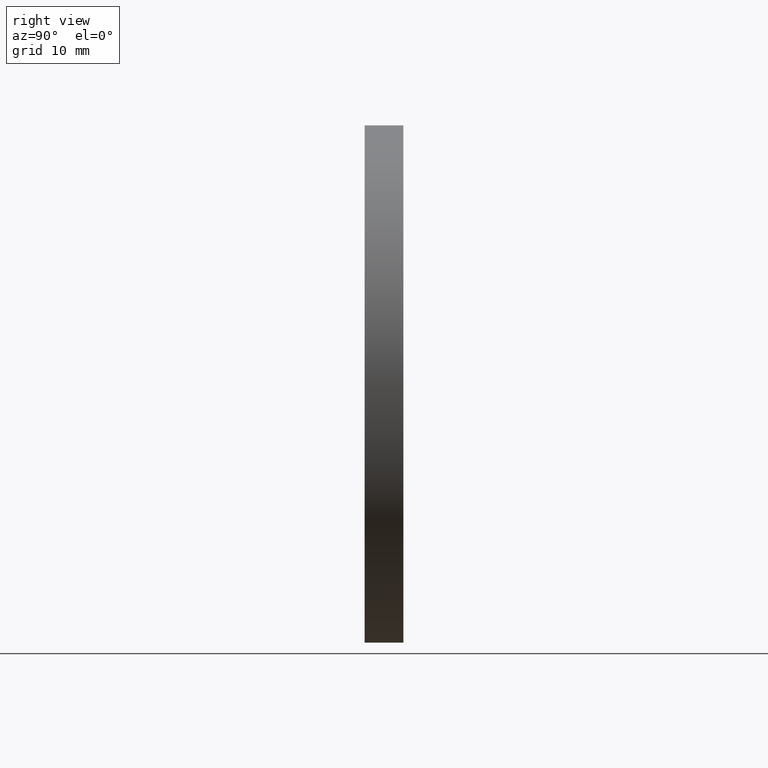
[diagram: clean part render]
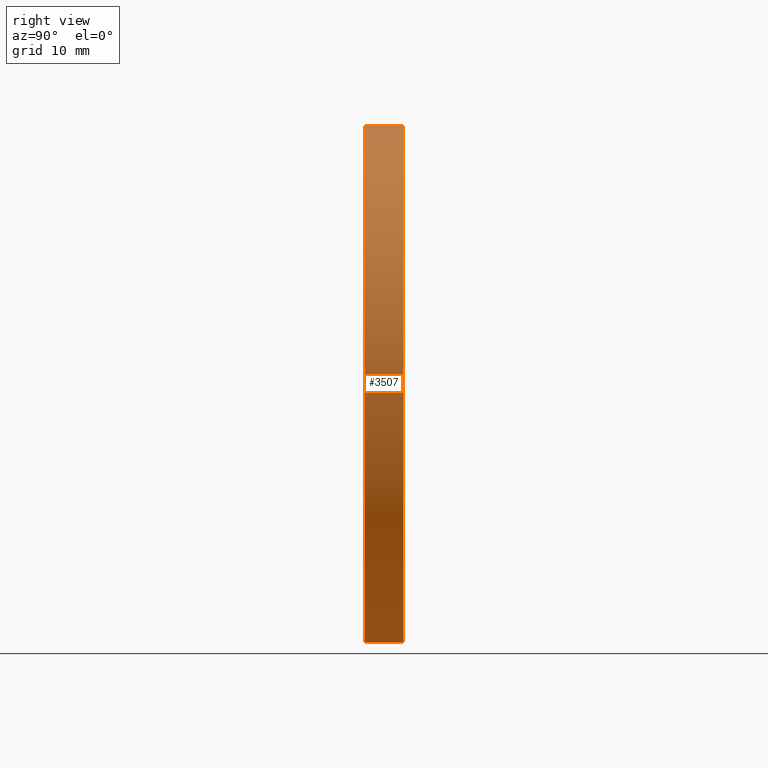
[diagram: same view with one face highlighted and labeled with its STEP entity id]
A machine part, right view. The second image highlights one B-rep face of the part: STEP entity #3507.
In plain terms, the highlighted cylindrical surface (partial cylindrical patch) has radius 40 mm, axis along (-0, -1, -0).
Its self-contained STEP definition (entity closure, byte-faithful):
#169 = DIRECTION ( 'NONE',  ( -0.0000000000000000000, -1.000000000000000000, -0.0000000000000000000 ) ) ;
#823 = EDGE_CURVE ( 'NONE', #11749, #12769, #4870, .T. ) ;
#1989 = CARTESIAN_POINT ( 'NONE',  ( 0.0000000000000000000, 6.000000000000000000, 0.0000000000000000000 ) ) ;
#2105 = VERTEX_POINT ( 'NONE', #5986 ) ;
#2227 = DIRECTION ( 'NONE',  ( 0.0000000000000000000, 0.0000000000000000000, 1.000000000000000000 ) ) ;
#2390 = AXIS2_PLACEMENT_3D ( 'NONE', #1989, #7900, #2924 ) ;
#2841 = CYLINDRICAL_SURFACE ( 'NONE', #2390, 40.00000000000000000 ) ;
#2924 = DIRECTION ( 'NONE',  ( 0.0000000000000000000, 0.0000000000000000000, -1.000000000000000000 ) ) ;
#3407 = CARTESIAN_POINT ( 'NONE',  ( 0.0000000000000000000, 0.0000000000000000000, 0.0000000000000000000 ) ) ;
#3507 = ADVANCED_FACE ( 'NONE', ( #3766 ), #2841, .T. ) ;
#3766 = FACE_OUTER_BOUND ( 'NONE', #5473, .T. ) ;
#3771 = ORIENTED_EDGE ( 'NONE', *, *, #823, .T. ) ;
#3882 = ORIENTED_EDGE ( 'NONE', *, *, #11112, .T. ) ;
#4125 = VERTEX_POINT ( 'NONE', #11720 ) ;
#4213 = CARTESIAN_POINT ( 'NONE',  ( 4.898587196589413000E-015, 0.0000000000000000000, 40.00000000000000000 ) ) ;
#4479 = CARTESIAN_POINT ( 'NONE',  ( 4.898587196589413000E-015, 6.000000000000000000, 40.00000000000000000 ) ) ;
#4870 = LINE ( 'NONE', #11885, #9351 ) ;
#5233 = DIRECTION ( 'NONE',  ( 0.0000000000000000000, 1.000000000000000000, 0.0000000000000000000 ) ) ;
#5255 = AXIS2_PLACEMENT_3D ( 'NONE', #3407, #6315, #2227 ) ;
#5473 = EDGE_LOOP ( 'NONE', ( #9328, #3771, #3882, #10803 ) ) ;
#5986 = CARTESIAN_POINT ( 'NONE',  ( 0.0000000000000000000, 0.0000000000000000000, -40.00000000000000000 ) ) ;
#6266 = CIRCLE ( 'NONE', #5255, 40.00000000000000000 ) ;
#6315 = DIRECTION ( 'NONE',  ( 0.0000000000000000000, 1.000000000000000000, 0.0000000000000000000 ) ) ;
#6863 = DIRECTION ( 'NONE',  ( -0.0000000000000000000, -1.000000000000000000, -0.0000000000000000000 ) ) ;
#7540 = AXIS2_PLACEMENT_3D ( 'NONE', #9200, #5233, #8219 ) ;
#7650 = EDGE_CURVE ( 'NONE', #4125, #2105, #9884, .T. ) ;
#7900 = DIRECTION ( 'NONE',  ( -0.0000000000000000000, -1.000000000000000000, -0.0000000000000000000 ) ) ;
#8171 = CARTESIAN_POINT ( 'NONE',  ( 0.0000000000000000000, 6.000000000000000000, -40.00000000000000000 ) ) ;
#8219 = DIRECTION ( 'NONE',  ( 0.0000000000000000000, 0.0000000000000000000, 1.000000000000000000 ) ) ;
#8388 = EDGE_CURVE ( 'NONE', #11749, #4125, #8804, .T. ) ;
#8804 = CIRCLE ( 'NONE', #7540, 40.00000000000000000 ) ;
#9200 = CARTESIAN_POINT ( 'NONE',  ( 0.0000000000000000000, 6.000000000000000000, 0.0000000000000000000 ) ) ;
#9328 = ORIENTED_EDGE ( 'NONE', *, *, #8388, .F. ) ;
#9351 = VECTOR ( 'NONE', #6863, 1000.000000000000000 ) ;
#9884 = LINE ( 'NONE', #8171, #10656 ) ;
#10656 = VECTOR ( 'NONE', #169, 1000.000000000000000 ) ;
#10803 = ORIENTED_EDGE ( 'NONE', *, *, #7650, .F. ) ;
#11112 = EDGE_CURVE ( 'NONE', #12769, #2105, #6266, .T. ) ;
#11720 = CARTESIAN_POINT ( 'NONE',  ( 0.0000000000000000000, 6.000000000000000000, -40.00000000000000000 ) ) ;
#11749 = VERTEX_POINT ( 'NONE', #4479 ) ;
#11885 = CARTESIAN_POINT ( 'NONE',  ( 4.898587196589413000E-015, 6.000000000000000000, 40.00000000000000000 ) ) ;
#12769 = VERTEX_POINT ( 'NONE', #4213 ) ;